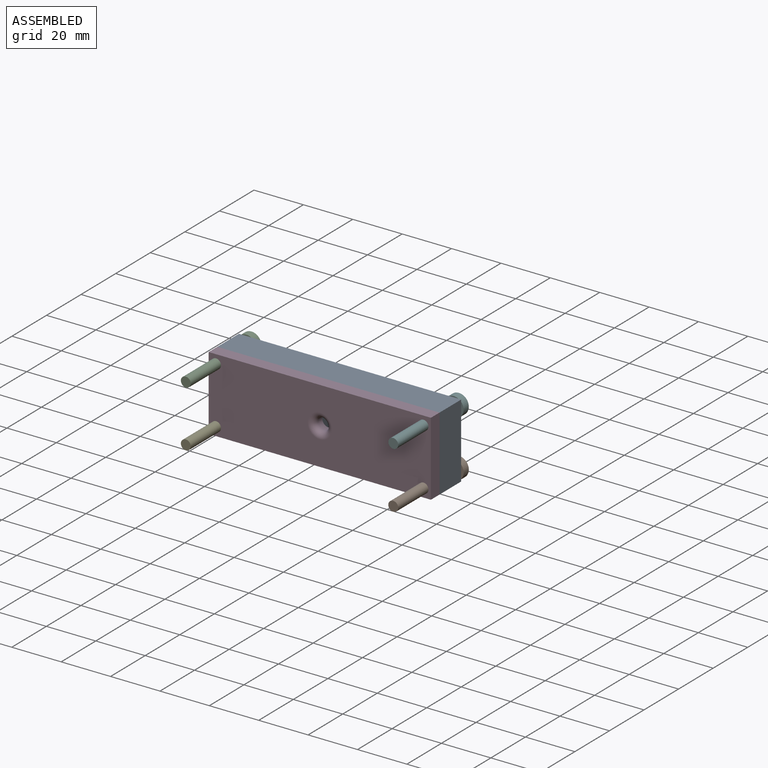
[diagram: assembled view]
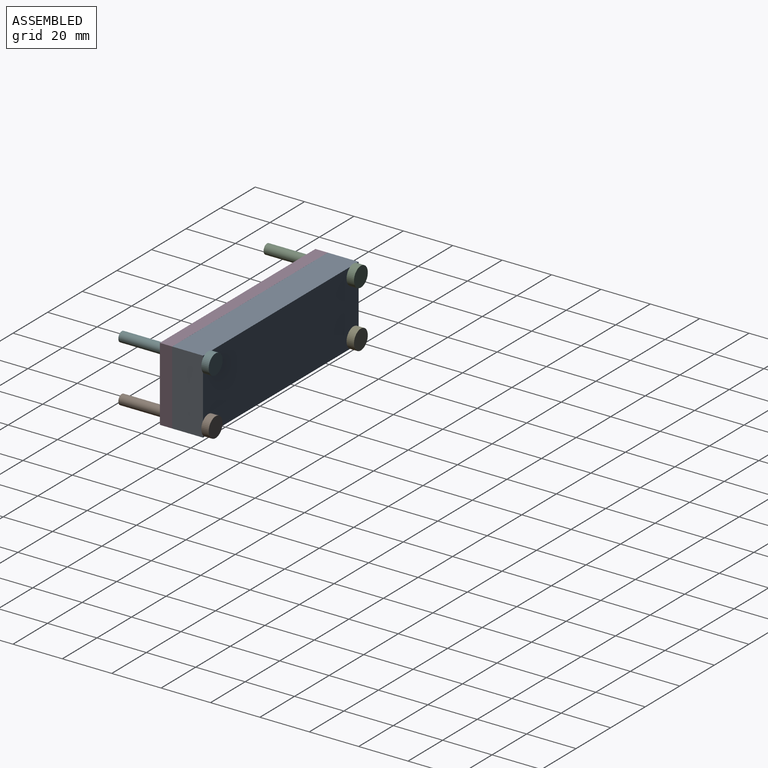
[diagram: assembled view, second angle]
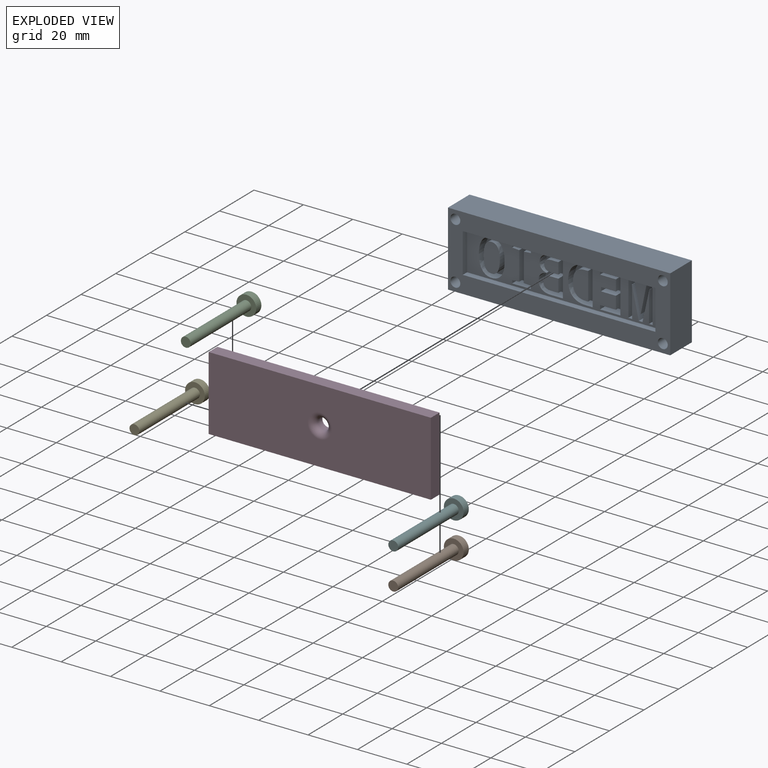
[diagram: exploded view]
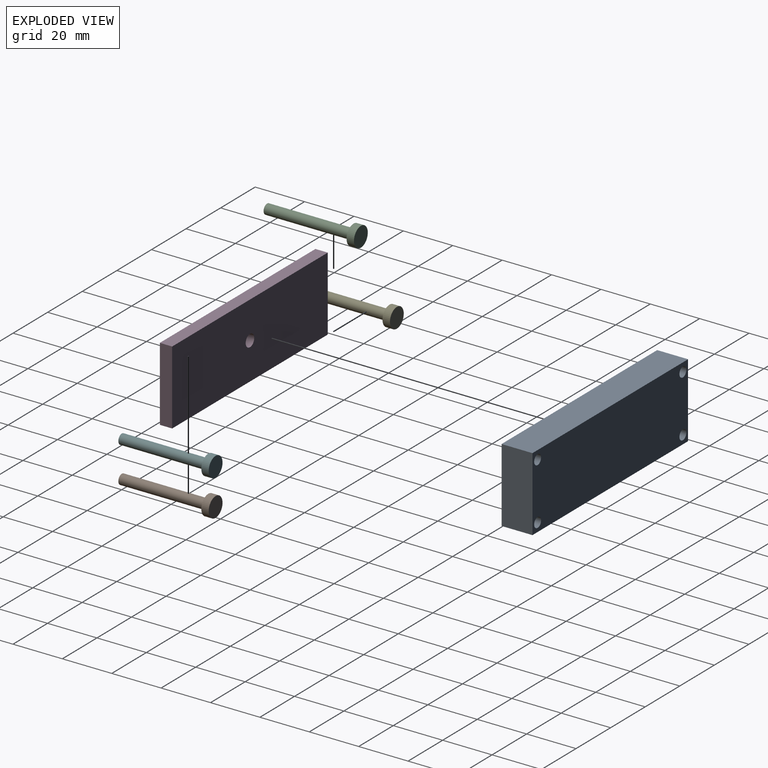
[diagram: exploded view, second angle]
ASSEMBLY  parts=6 mates=5
PART A: 114 faces, bbox 90x30x12.5 mm
  f0: plane 78x16mm, normal (0,0,1), area 692.2mm2, adj f1,f2,f3,f4,f5,f6,f7,f8
  f1: plane 4x1.51mm, normal (0,1,0), area 6mm2, adj f0,f2,f18,f19
  f2: plane 12.55x4mm, normal (-0.98,0.21,0), area 51.4mm2, adj f0,f1,f3,f19
  f3: plane 4x0.08mm, normal (0,1,0), area 0.3mm2, adj f0,f2,f4,f19
  f4: extruded ~4x3.98mm, area 15.9mm2, adj f0,f3,f5,f19
  f5: plane 8.57x4mm, normal (1,0,0), area 34.3mm2, adj f0,f4,f6,f19
  f6: plane 4x1.48mm, normal (0,1,0), area 5.9mm2, adj f0,f5,f7,f19
  f7: plane 14.33x4mm, normal (-1,0,0), area 57.3mm2, adj f0,f6,f8,f19
  f8: plane 4x2.42mm, normal (0,-1,0), area 9.7mm2, adj f0,f7,f9,f19
  f9: plane 11.69x4mm, normal (0.98,-0.2,0), area 47.7mm2, adj f0,f8,f10,f19
  f10: plane 4x0.06mm, normal (0,-1,0), area 0.2mm2, adj f0,f9,f11,f19
  f11: plane 11.69x4mm, normal (-0.98,-0.21,0), area 47.8mm2, adj f0,f10,f12,f19
  f12: plane 4x2.47mm, normal (0,-1,0), area 9.9mm2, adj f0,f11,f13,f19
  f13: plane 14.33x4mm, normal (1,0,0), area 57.3mm2, adj f0,f12,f14,f19
  f14: plane 4x1.5mm, normal (0,1,0), area 6mm2, adj f0,f13,f15,f19
  f15: plane 8.7x4mm, normal (-1,0,0), area 34.8mm2, adj f0,f14,f16,f19
  f16: extruded ~4x3.83mm, area 15.3mm2, adj f0,f15,f17,f19
  f17: plane 4x0.08mm, normal (0,1,0), area 0.3mm2, adj f0,f16,f18,f19
  f18: plane 12.53x4mm, normal (0.98,0.22,0), area 51.3mm2, adj f0,f1,f17,f19
  f19: plane 14.33x9.83mm, normal (0,0,1), area 78.7mm2, adj f1,f2,f3,f4,f5,f6,f7,f8
  f20: plane 4x1.61mm, normal (1,0,0), area 6.4mm2, adj f0,f21,f31,f32
  f21: plane 8.25x4mm, normal (0,1,0), area 33mm2, adj f0,f20,f22,f32
  f22: plane 14.33x4mm, normal (-1,0,0), area 57.3mm2, adj f0,f21,f23,f32
  f23: plane 8.25x4mm, normal (0,-1,0), area 33mm2, adj f0,f22,f24,f32
  f24: plane 4x1.61mm, normal (1,0,0), area 6.4mm2, adj f0,f23,f25,f32
  f25: plane 6.43x4mm, normal (0,1,0), area 25.7mm2, adj f0,f24,f26,f32
  f26: plane 4.43x4mm, normal (1,0,0), area 17.7mm2, adj f0,f25,f27,f32
  f27: plane 6.05x4mm, normal (0,-1,0), area 24.2mm2, adj f0,f26,f28,f32
  f28: plane 4x1.59mm, normal (1,0,0), area 6.3mm2, adj f0,f27,f29,f32
  f29: plane 6.05x4mm, normal (0,1,0), area 24.2mm2, adj f0,f28,f30,f32
  f30: plane 5.1x4mm, normal (1,0,0), area 20.4mm2, adj f0,f29,f31,f32
  f31: plane 6.43x4mm, normal (0,-1,0), area 25.7mm2, adj f0,f20,f30,f32
  f32: plane 14.33x8.25mm, normal (0,0,1), area 56.4mm2, adj f20,f21,f22,f23,f24,f25,f26,f27
  f33: plane 4x2.95mm, normal (0,1,0), area 11.8mm2, adj f0,f34,f44,f45
  f34: plane 14.33x4mm, normal (-1,0,0), area 57.3mm2, adj f0,f33,f35,f45
  f35: plane 4x3.35mm, normal (0,-1,0), area 13.4mm2, adj f0,f34,f36,f45
  f36: extruded ~4.84x4mm, area 21.3mm2, adj f0,f35,f37,f45
  f37: extruded ~5.18x4mm, area 22.4mm2, adj f0,f36,f38,f45
  f38: extruded ~5.42x4mm, area 23.4mm2, adj f0,f37,f44,f45
  f39: plane 4x1.32mm, normal (0,1,0), area 5.3mm2, adj f40,f43,f45,f46
  f40: plane 11.21x4mm, normal (1,0,0), area 44.8mm2, adj f39,f41,f45,f46
  f41: plane 4x0.94mm, normal (0,-1,0), area 3.8mm2, adj f40,f42,f45,f46
  f42: extruded ~5.67x5.22mm, area 35.4mm2, adj f41,f43,f45,f46
  f43: extruded ~5.53x4.83mm, area 33.7mm2, adj f39,f42,f45,f46
  f44: extruded ~5.17x4mm, area 22.7mm2, adj f0,f33,f38,f45
  f45: plane 14.33x9.92mm, normal (0,0,1), area 65.4mm2, adj f33,f34,f35,f36,f37,f38,f39,f40
  f46: plane 11.21x6.16mm, normal (0,0,1), area 59.6mm2, adj f39,f40,f41,f42,f43
  f47: plane 14.33x4mm, normal (-1,0,0), area 57.3mm2, adj f0,f48,f69,f70
  f48: plane 4.31x4mm, normal (0,-1,0), area 17.3mm2, adj f0,f47,f49,f70
  f49: extruded ~4x3.9mm, area 16.2mm2, adj f0,f48,f50,f70
  f50: extruded ~4x2.77mm, area 12.6mm2, adj f0,f49,f51,f70
  f51: extruded ~4x2.09mm, area 9.1mm2, adj f0,f50,f52,f70
  f52: extruded ~4x2.08mm, area 9.4mm2, adj f0,f51,f53,f70
  f53: plane 4x0.1mm, normal (1,0,0), area 0.4mm2, adj f0,f52,f54,f70
  f54: extruded ~4x3.35mm, area 20.7mm2, adj f0,f53,f55,f70
  f55: extruded ~4x3.05mm, area 13.6mm2, adj f0,f54,f56,f70
  f56: extruded ~4x3.41mm, area 14.7mm2, adj f0,f55,f69,f70
  f57: plane 4x2.88mm, normal (0,1,0), area 11.5mm2, adj f58,f67,f70,f72
  f58: plane 5.18x4mm, normal (1,0,0), area 20.7mm2, adj f57,f59,f70,f72
  f59: plane 4x3.01mm, normal (0,-1,0), area 12mm2, adj f58,f60,f70,f72
  f60: extruded ~4x3.05mm, area 18.6mm2, adj f59,f67,f70,f72
  f61: plane 4.52x4mm, normal (1,0,0), area 18.1mm2, adj f62,f68,f70,f71
  f62: plane 4x2.79mm, normal (0,-1,0), area 11.1mm2, adj f61,f63,f70,f71
  f63: extruded ~4x2.23mm, area 9.3mm2, adj f62,f64,f70,f71
  f64: extruded ~4x1.79mm, area 8mm2, adj f63,f65,f70,f71
  f65: extruded ~4x1.69mm, area 7.7mm2, adj f64,f66,f70,f71
  f66: extruded ~4x2.38mm, area 9.9mm2, adj f65,f68,f70,f71
  f67: extruded ~4x3.18mm, area 18.5mm2, adj f57,f60,f70,f72
  f68: plane 4x2.59mm, normal (0,1,0), area 10.4mm2, adj f61,f66,f70,f71
  f69: plane 5.17x4mm, normal (0,1,0), area 20.7mm2, adj f0,f47,f56,f70
  f70: plane 14.33x9.82mm, normal (0,0,1), area 74.5mm2, adj f47,f48,f49,f50,f51,f52,f53,f54
  f71: plane 5.72x4.52mm, normal (0,0,1), area 23.7mm2, adj f61,f62,f63,f64,f65,f66,f68
  f72: plane 6.06x5.18mm, normal (0,0,1), area 28.7mm2, adj f57,f58,f59,f60,f67
  f73: plane 4x1.2mm, normal (1,0,0), area 4.8mm2, adj f0,f74,f84,f85
  f74: plane 7.61x4mm, normal (0,1,0), area 30.4mm2, adj f0,f73,f75,f85
  f75: plane 4x1.2mm, normal (-1,0,0), area 4.8mm2, adj f0,f74,f76,f85
  f76: plane 4x2.89mm, normal (-0.07,-1,0), area 11.6mm2, adj f0,f75,f77,f85
  f77: plane 11.53x4mm, normal (-1,0,0), area 46.1mm2, adj f0,f76,f78,f85
  f78: plane 4x2.89mm, normal (-0.07,1,0), area 11.6mm2, adj f0,f77,f79,f85
  f79: plane 4x1.21mm, normal (-1,0,0), area 4.8mm2, adj f0,f78,f80,f85
  f80: plane 7.61x4mm, normal (0,-1,0), area 30.4mm2, adj f0,f79,f81,f85
  f81: plane 4x1.21mm, normal (1,0,0), area 4.8mm2, adj f0,f80,f82,f85
  f82: plane 4x2.88mm, normal (0.07,1,0), area 11.6mm2, adj f0,f81,f83,f85
  f83: plane 11.53x4mm, normal (1,0,0), area 46.1mm2, adj f0,f82,f84,f85
  f84: plane 4x2.88mm, normal (0.07,-1,0), area 11.6mm2, adj f0,f73,f83,f85
  f85: plane 14.33x7.61mm, normal (0,0,1), area 41.3mm2, adj f73,f74,f75,f76,f77,f78,f79,f80
  f86: extruded ~4x3.85mm, area 18mm2, adj f0,f87,f97,f98
  f87: extruded ~7.4x5.21mm, area 41.2mm2, adj f0,f86,f88,f98
  f88: extruded ~7.35x5.23mm, area 41.1mm2, adj f0,f87,f89,f98
  f89: extruded ~4x3.85mm, area 17.9mm2, adj f0,f88,f90,f98
  f90: extruded ~5.46x4mm, area 22.8mm2, adj f0,f89,f97,f98
  f91: extruded ~5.78x4mm, area 29.9mm2, adj f92,f96,f98,f99
  f92: extruded ~4x2.49mm, area 12.1mm2, adj f91,f93,f98,f99
  f93: extruded ~4.36x4mm, area 17.9mm2, adj f92,f94,f98,f99
  f94: extruded ~4.37x4mm, area 17.9mm2, adj f93,f95,f98,f99
  f95: extruded ~4x2.46mm, area 11.9mm2, adj f94,f96,f98,f99
  f96: extruded ~5.76x4mm, area 29.9mm2, adj f91,f95,f98,f99
  f97: extruded ~5.46x4mm, area 22.9mm2, adj f0,f86,f90,f98
  f98: plane 14.76x10.42mm, normal (0,0,1), area 64mm2, adj f86,f87,f88,f89,f90,f91,f92,f93
  f99: plane 11.55x6.56mm, normal (0,0,1), area 63.4mm2, adj f91,f92,f93,f94,f95,f96
  f100: plane 78x2.5mm, normal (0,-1,0), area 195mm2, adj f0,f101,f104,f108
  f101: plane 16x2.5mm, normal (-1,0,0), area 40mm2, adj f0,f100,f102,f108
  f102: plane 78x2.5mm, normal (0,1,0), area 195mm2, adj f0,f101,f104,f108
  f103: cylinder r=2mm len=12.5mm, axis (0,0,-1), area 157.1mm2, adj f108,f109
  f104: plane 16x2.5mm, normal (1,0,0), area 40mm2, adj f0,f100,f102,f108
  f105: cylinder r=2mm len=12.5mm, axis (0,0,-1), area 157.1mm2, adj f108,f109
  f106: cylinder r=2mm len=12.5mm, axis (0,0,-1), area 157.1mm2, adj f108,f109
  f107: cylinder r=2mm len=12.5mm, axis (0,0,-1), area 157.1mm2, adj f108,f109
  f108: plane 90x30mm, normal (0,0,1), area 1401.7mm2, adj f100,f101,f102,f103,f104,f105,f106,f107
  f109: plane 90x30mm, normal (0,0,-1), area 2649.7mm2, adj f103,f105,f106,f107,f110,f111,f112,f113
  f110: plane 90x12.5mm, normal (0,-1,0), area 1125mm2, adj f108,f109,f111,f113
  f111: plane 30x12.5mm, normal (-1,0,0), area 375mm2, adj f108,f109,f110,f112
  f112: plane 90x12.5mm, normal (0,1,0), area 1125mm2, adj f108,f109,f111,f113
  f113: plane 30x12.5mm, normal (1,0,0), area 375mm2, adj f108,f109,f110,f112
PART B: 5 faces, bbox 8x8x38 mm
  f0: cylinder r=4mm len=8mm, axis (0,0,-1), area 75.4mm2, adj f1,f2
  f1: plane 8x8mm, normal (0,0,1), area 37.7mm2, adj f0,f3
  f2: plane 8x8mm, normal (0,0,-1), area 50.3mm2, adj f0
  f3: cylinder r=2mm len=35mm, axis (0,0,-1), area 439.8mm2, adj f1,f4
  f4: plane 4x4mm, normal (0,0,1), area 12.6mm2, adj f3
PART C: same geometry as B
PART D: 8 faces, bbox 90x30x5 mm
  f0: plane 90x5mm, normal (0,-1,0), area 450mm2, adj f1,f3,f4,f5
  f1: plane 30x5mm, normal (1,0,0), area 150mm2, adj f0,f2,f4,f5
  f2: plane 90x5mm, normal (0,1,0), area 450mm2, adj f1,f3,f4,f5
  f3: plane 30x5mm, normal (-1,0,0), area 150mm2, adj f0,f2,f4,f5
  f4: plane 90x30mm, normal (0,0,1), area 2623mm2, adj f0,f1,f2,f3,f7
  f5: plane 90x30mm, normal (0,0,-1), area 2681.1mm2, adj f0,f1,f2,f3,f6
  f6: cylinder r=2.45mm len=4.9mm, axis (0,0,1), area 38.5mm2, adj f5,f7
  f7: torus R=4.95mm, axis (0,0,1), area 82.9mm2, adj f4,f6
PART E: same geometry as B
PART F: same geometry as B
PLACE A rot(axis=(1,0,0),90deg) t=(0.97,77.13,31.54)mm
PLACE B rot(axis=(1,0,0),90deg) t=(42.97,80.13,20.04)mm
PLACE C rot(axis=(1,0,0),90deg) t=(-41.03,80.13,43.04)mm
PLACE D rot(axis=(1,0,0),90deg) t=(0.97,64.63,31.55)mm
PLACE E rot(axis=(1,0,0),90deg) t=(-41.03,80.13,20.04)mm
PLACE F rot(axis=(1,0,0),90deg) t=(42.97,80.13,43.04)mm
MATE fastened C.f0 <-> A.f103  axis (0,-1,0) through (-41.03,77.13,43.04)mm
MATE fastened A.f105 <-> B.f0  axis (0,1,0) through (42.97,77.13,20.04)mm
MATE fastened F.f0 <-> A.f106  axis (0,-1,0) through (42.97,77.13,43.04)mm
MATE fastened E.f0 <-> A.f107  axis (0,-1,0) through (-41.03,77.13,20.04)mm
MATE fastened A.f108 <-> D.f6  axis (0,-1,0) through (0.97,64.63,31.55)mm
